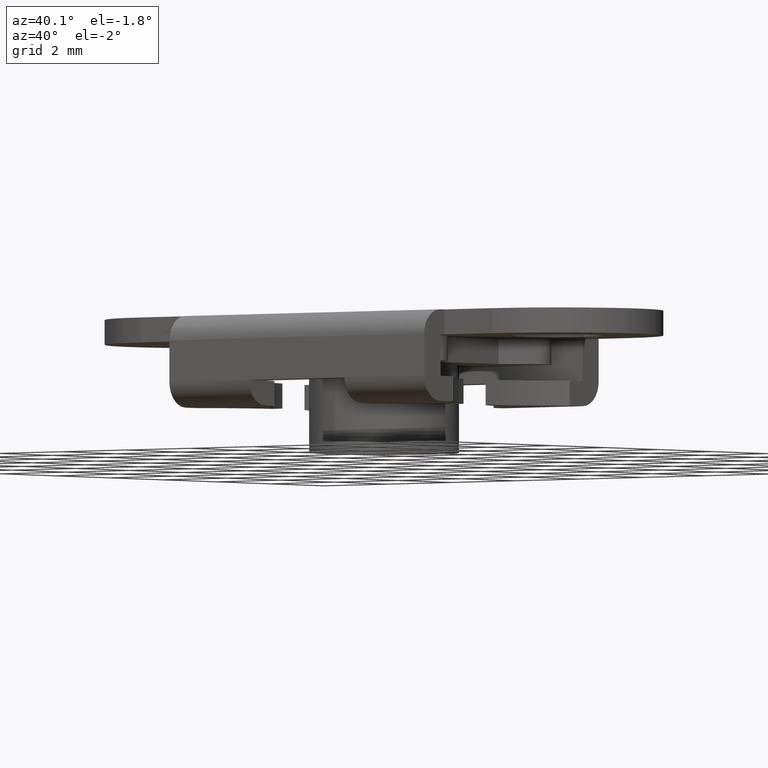
[diagram: clean part render]
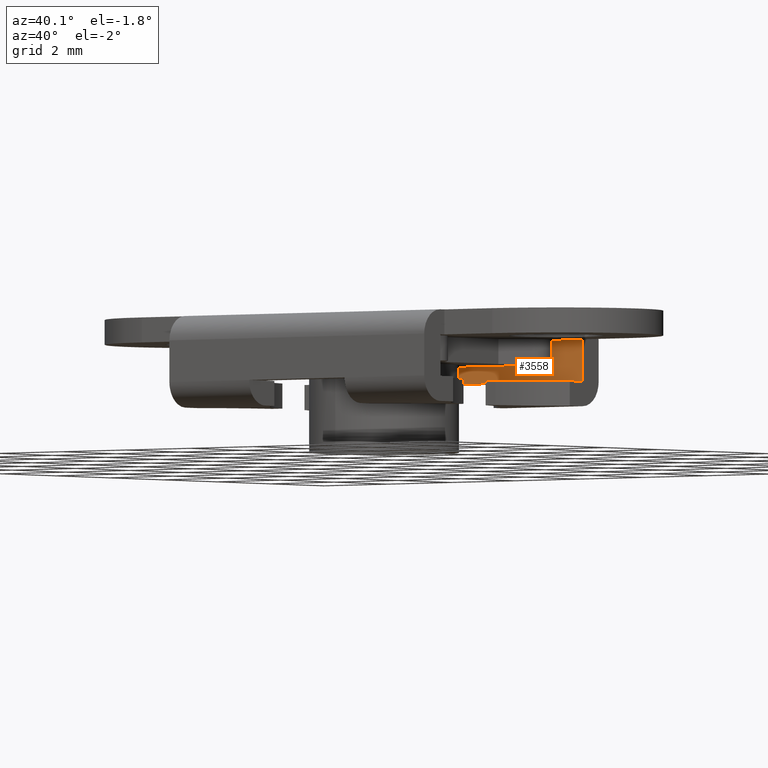
[diagram: same view with one face highlighted and labeled with its STEP entity id]
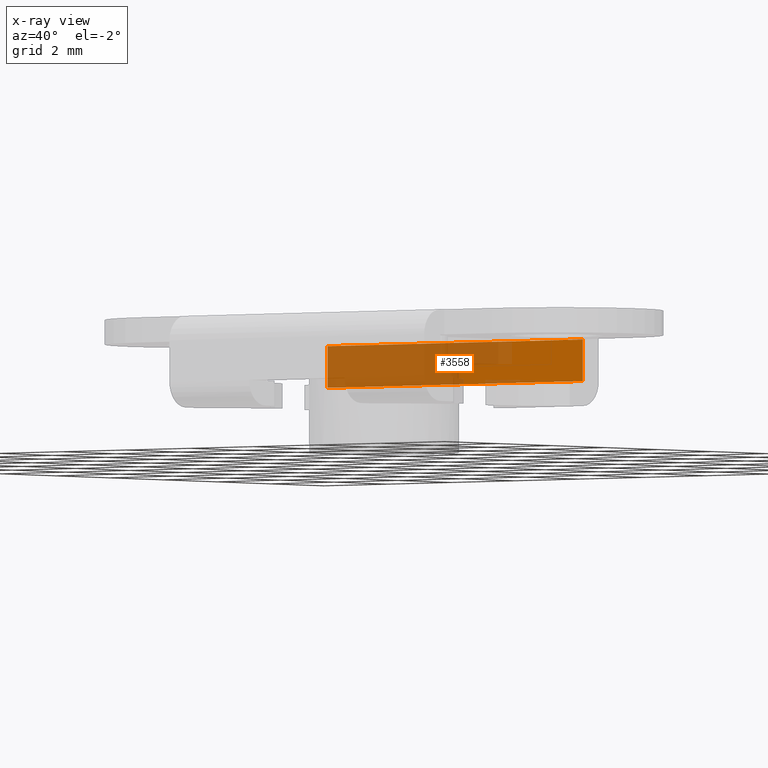
[diagram: x-ray of the same camera — body ghosted, the highlighted face saturated]
A machine part, auxiliary view. The second image highlights one B-rep face of the part: STEP entity #3558.
The next image is the same camera in x-ray: the body ghosted, the highlighted face saturated — about 64% of this face is hidden behind the body in this view.
In plain terms, the highlighted face is a freeform B-spline surface patch.
Its self-contained STEP definition (entity closure, byte-faithful):
#2256=CARTESIAN_POINT('',(4.0,2.650000000000000,-1.600000000000000));
#2257=VERTEX_POINT('',#2256);
#2263=CARTESIAN_POINT('',(1.500000000000000,2.650000000000040,-1.600000000000045));
#2264=VERTEX_POINT('',#2263);
#2265=CARTESIAN_POINT('',(4.0,2.650000000000000,-1.600000000000000));
#2266=CARTESIAN_POINT('',(1.500000000000000,2.650000000000040,-1.600000000000045));
#2267=QUASI_UNIFORM_CURVE('',1,(#2265,#2266),.UNSPECIFIED.,.F.,.U.);
#2268=EDGE_CURVE('',#2257,#2264,#2267,.T.);
#2428=CARTESIAN_POINT('',(-1.500000000000000,2.650000000000040,-1.600000000000000));
#2429=VERTEX_POINT('',#2428);
#2435=CARTESIAN_POINT('',(-4.0,2.650000000000000,-1.600000000000045));
#2436=VERTEX_POINT('',#2435);
#2437=CARTESIAN_POINT('',(-1.500000000000000,2.650000000000040,-1.600000000000000));
#2438=CARTESIAN_POINT('',(-4.0,2.650000000000000,-1.600000000000045));
#2439=QUASI_UNIFORM_CURVE('',1,(#2437,#2438),.UNSPECIFIED.,.F.,.U.);
#2440=EDGE_CURVE('',#2429,#2436,#2439,.T.);
#2512=CARTESIAN_POINT('',(-1.500000000000000,2.650000000000040,-1.600000000000000));
#2513=CARTESIAN_POINT('',(1.500000000000000,2.650000000000040,-1.600000000000045));
#2514=QUASI_UNIFORM_CURVE('',1,(#2512,#2513),.UNSPECIFIED.,.F.,.U.);
#2515=EDGE_CURVE('',#2429,#2264,#2514,.T.);
#3290=CARTESIAN_POINT('',(4.0,2.650000000000000,-0.600000000000000));
#3291=VERTEX_POINT('',#3290);
#3297=CARTESIAN_POINT('',(4.0,2.650000000000000,-1.600000000000000));
#3298=CARTESIAN_POINT('',(4.0,2.650000000000000,-0.600000000000000));
#3299=QUASI_UNIFORM_CURVE('',1,(#3297,#3298),.UNSPECIFIED.,.F.,.U.);
#3300=EDGE_CURVE('',#2257,#3291,#3299,.T.);
#3321=CARTESIAN_POINT('',(-4.0,2.650000000000000,-0.600000000000000));
#3322=VERTEX_POINT('',#3321);
#3323=CARTESIAN_POINT('',(-4.0,2.650000000000000,-0.600000000000000));
#3324=CARTESIAN_POINT('',(-4.0,2.650000000000000,-1.600000000000045));
#3325=QUASI_UNIFORM_CURVE('',1,(#3323,#3324),.UNSPECIFIED.,.F.,.U.);
#3326=EDGE_CURVE('',#3322,#2436,#3325,.T.);
#3508=CARTESIAN_POINT('',(4.0,2.650000000000000,-0.600000000000000));
#3509=CARTESIAN_POINT('',(-4.0,2.650000000000000,-0.600000000000000));
#3510=QUASI_UNIFORM_CURVE('',1,(#3508,#3509),.UNSPECIFIED.,.F.,.U.);
#3511=EDGE_CURVE('',#3291,#3322,#3510,.T.);
#3545=CARTESIAN_POINT('',(-4.399599984494448,2.650000000000000,-0.550050020712761));
#3546=CARTESIAN_POINT('',(4.399600199071169,2.650000000000000,-0.550050020712761));
#3547=CARTESIAN_POINT('',(-4.399599984494448,2.650000000000000,-1.649950023990768));
#3548=CARTESIAN_POINT('',(4.399600199071169,2.650000000000000,-1.649950023990768));
#3549=B_SPLINE_SURFACE_WITH_KNOTS('',1,1,((#3545,#3547),(#3546,#3548)),.UNSPECIFIED.,.F.,.F.,.U.,(2,2),(2,2),(0.0,8.799200183565617),(0.041708350593969,0.958291686658934),.UNSPECIFIED.);
#3550=ORIENTED_EDGE('',*,*,#2268,.F.);
#3551=ORIENTED_EDGE('',*,*,#3300,.T.);
#3552=ORIENTED_EDGE('',*,*,#3511,.T.);
#3553=ORIENTED_EDGE('',*,*,#3326,.T.);
#3554=ORIENTED_EDGE('',*,*,#2440,.F.);
#3555=ORIENTED_EDGE('',*,*,#2515,.T.);
#3556=EDGE_LOOP('',(#3550,#3551,#3552,#3553,#3554,#3555));
#3557=FACE_OUTER_BOUND('',#3556,.T.);
#3558=ADVANCED_FACE('',(#3557),#3549,.F.);